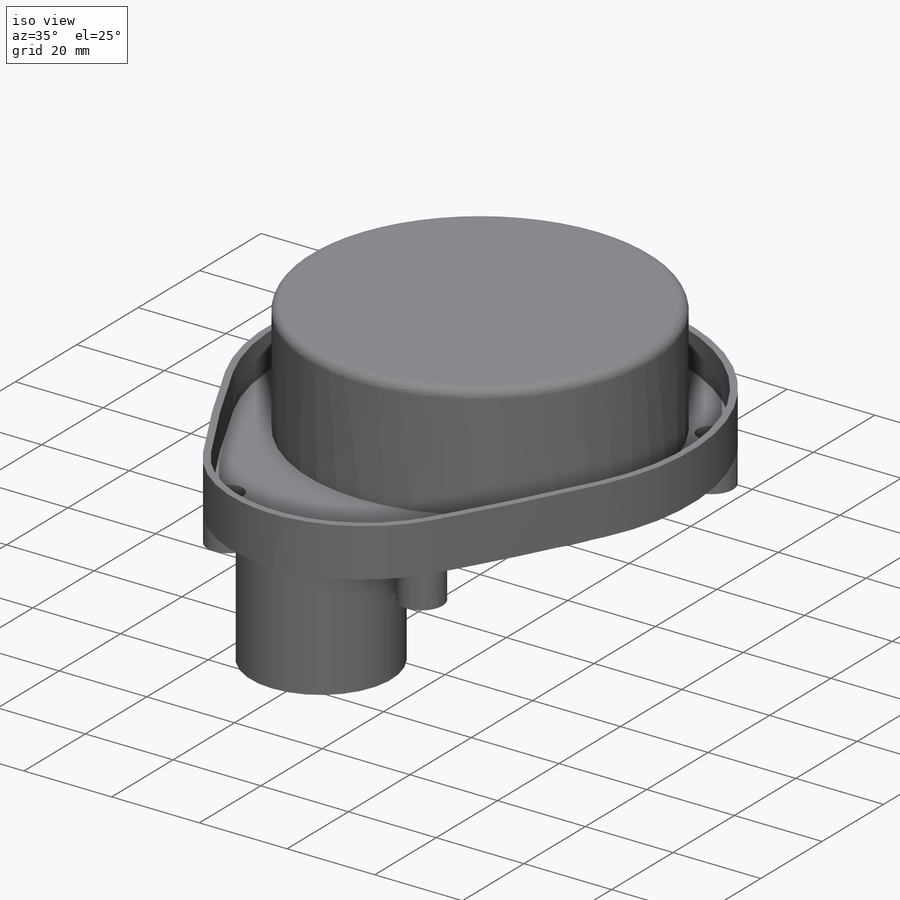
[diagram: iso view]
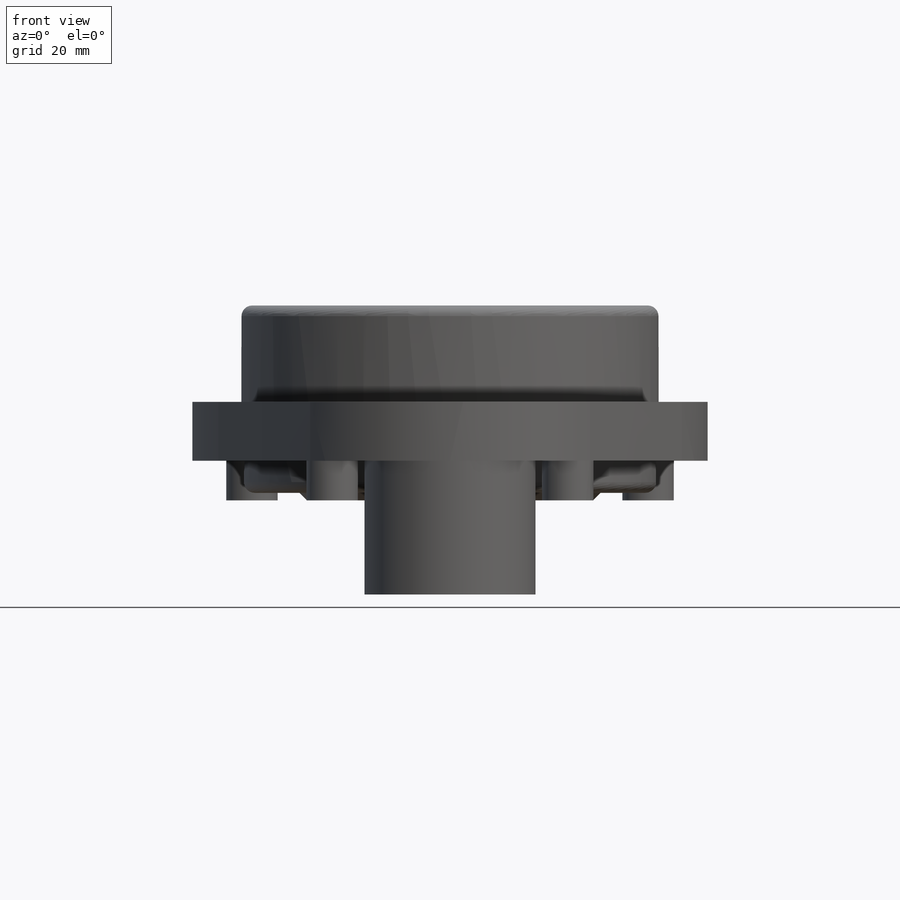
[diagram: front view]
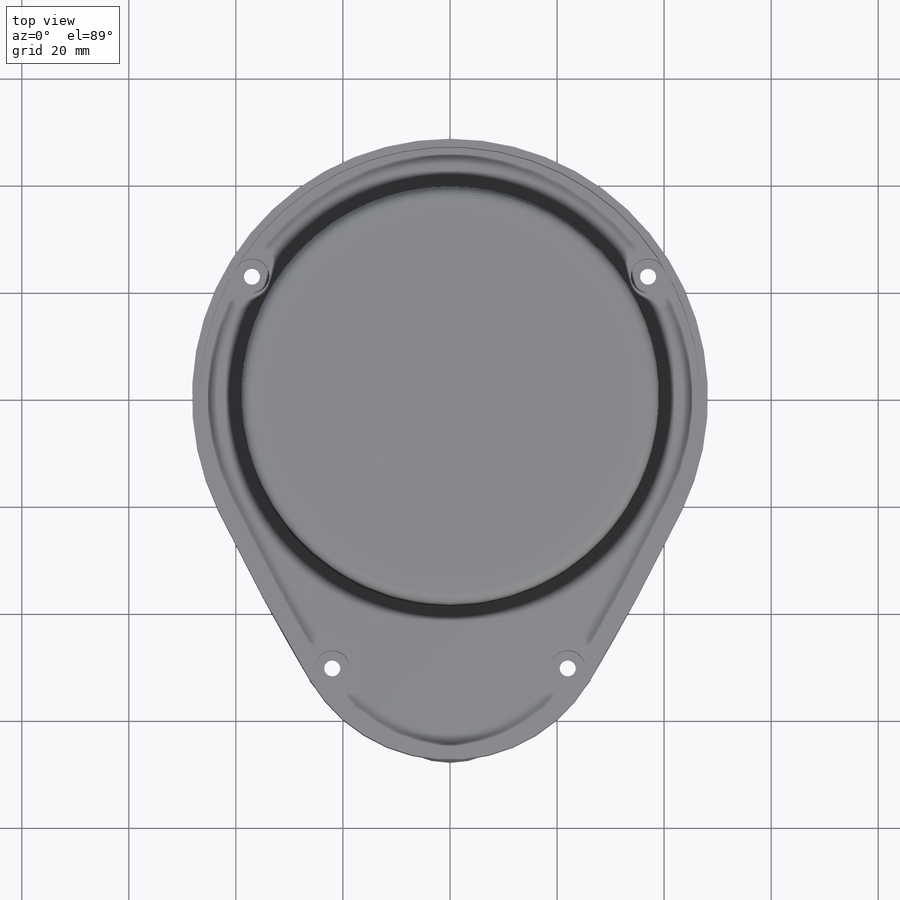
[diagram: top view]
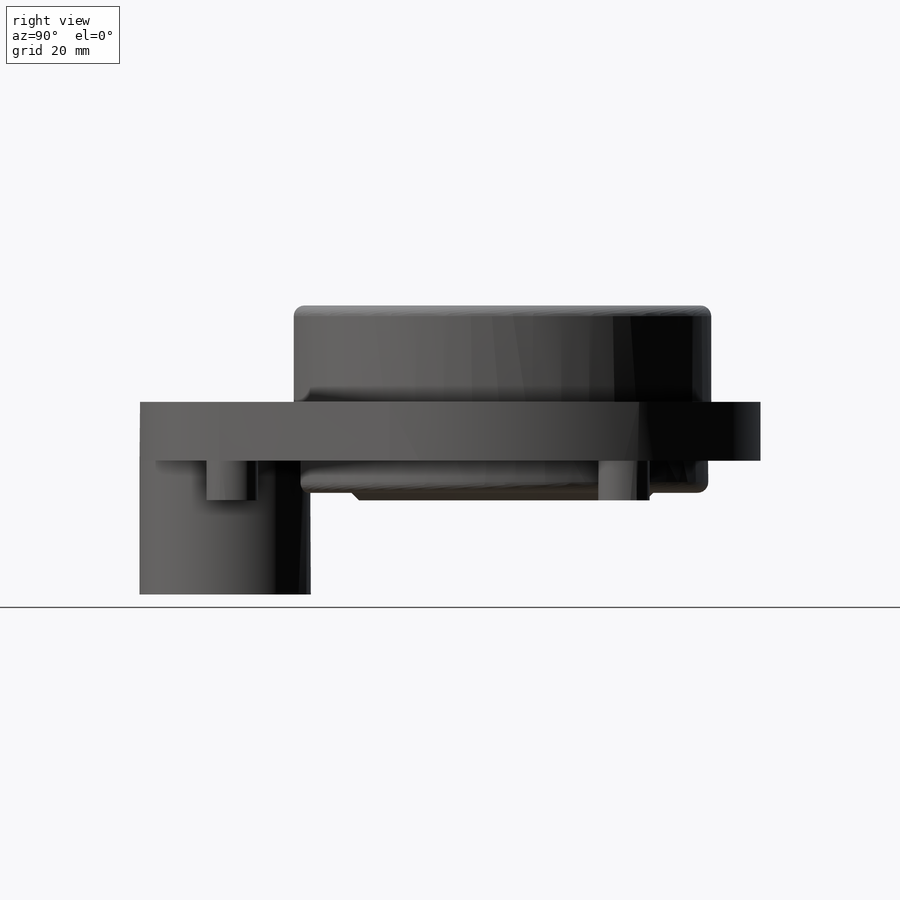
[diagram: right view]
SOLIDWORKS PART (.sldprt)
format: sldprt  version: not decoded by parser v0  size: 393,728 bytes
history: native  units: mm
features: sketch x11, extrude x7, cut_extrude x3, chamfer x2, fillet x2, material x1, plane x1 (+11 scaffold rows collapsed)
feature tree (38):
  scaffold x11  (default folders/planes/origin — collapsed)
  material  "ABS"
  sketch  "Sketch1"  dims[c1.D1=96.4mm c1.D2=96.4mm c1.D4=~106.630156mm c2.D2=116.4mm c2.D3=36.5mm c2.D4=37.0mm c2.D5=22.0mm c2.D6=94.0mm c3.D3=116.0mm]
  extrude  "Boss-Extrude2"  Depth=3mm
  sketch  "Sketch3"  dims[D1=0.0mm D2=0.0mm D3=0.0mm D4=0.0mm D5=0.0mm D6=0.0mm]
  extrude  "Boss-Extrude3"  Depth=7.4mm
  sketch  "Sketch6"  dims[D1=32.0mm]
  extrude  "Boss-Extrude6"  Depth=25mm
  sketch  "Sketch4"  dims[D1=77.0mm D2=1.0mm]
  extrude  "Boss-Extrude4"  Depth=6mm
  sketch  "Sketch5"  dims[D1=56.4mm]
  extrude  "Boss-Extrude5"  Depth=1.4mm
  chamfer  "Chamfer1"  Distance=1.4mm Angle=45deg
  fillet  "Fillet2"  Radius=2mm
  sketch  "Sketch7"  dims[D1=6.5mm]
  cut_extrude  "Cut-Extrude1"  Depth=2mm
  chamfer  "Chamfer2"  Distance=0.5mm Angle=45deg
  sketch  "Sketch9"  dims[D1=3.0mm]
  cut_extrude  "Cut-Extrude2"  [1 undecoded]
  sketch  "Sketch10"  dims[c1.D1=0.0mm c1.D2=0.0mm c1.D3=0.0mm c1.D4=0.0mm c1.D5=0.0mm c1.D6=0.0mm c2.D2=1.5mm]
  extrude  "Boss-Extrude7"  Depth=8mm
  sketch  "Sketch14"  dims[D1=6.5mm]
  cut_extrude  "Cut-Extrude3"  Depth=6mm
  sketch  "Sketch15"  dims[D1=78.0mm]
  extrude  "Boss-Extrude8"  Depth=26mm
  fillet  "Fillet3"  Radius=2mm
  plane  "Plane1"
  sketch  "Sketch16"
decode coverage: 23 of 25 modeling features carry decoded parameters
note: ~ marks probable driven/reference dimensions
note: 1 parameter value undecoded
note: suppression state not decoded; provenance and decode notes live in map.json
